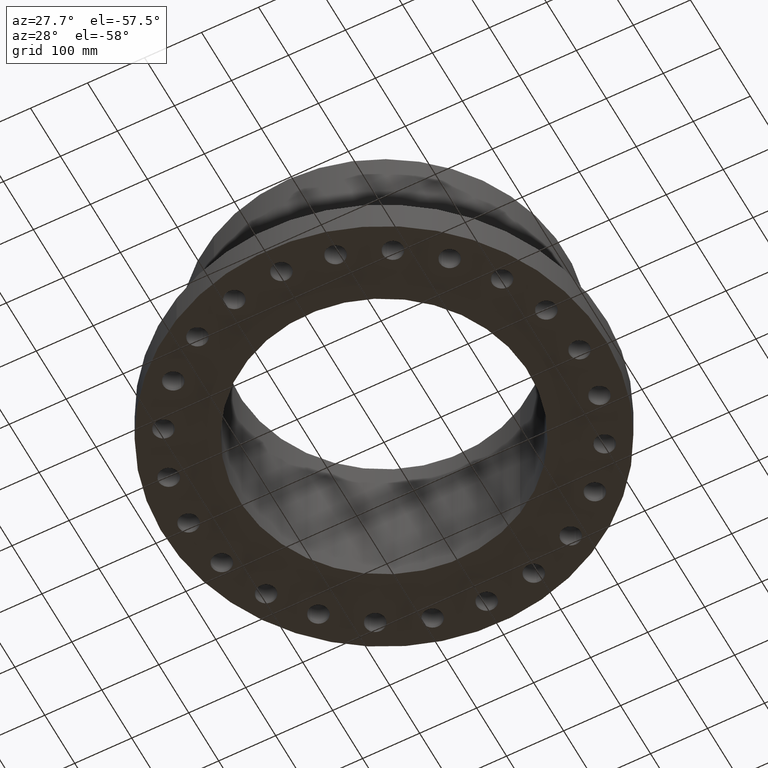
[diagram: clean part render]
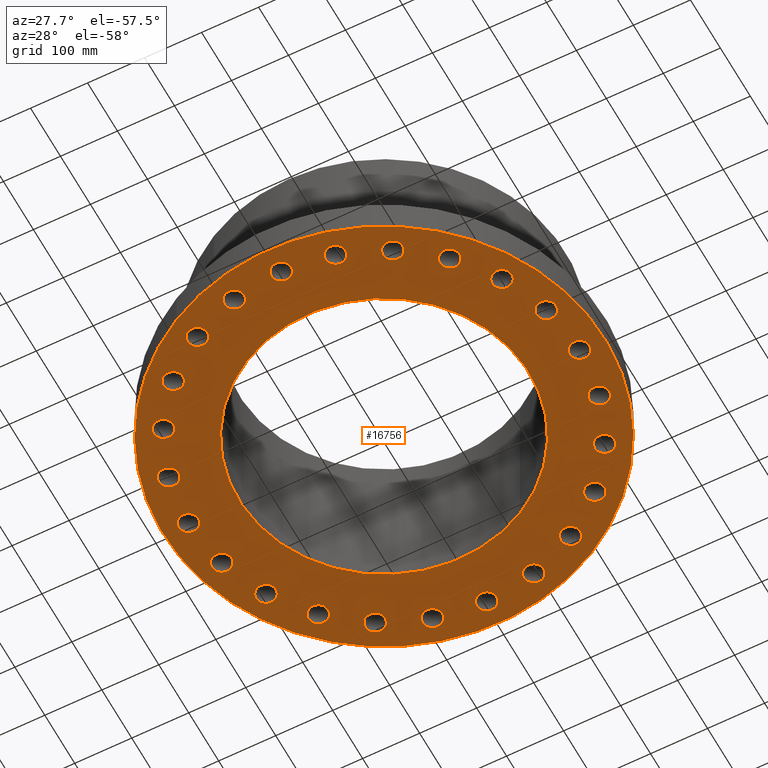
[diagram: same view with one face highlighted and labeled with its STEP entity id]
A machine part, auxiliary view. The second image highlights one B-rep face of the part: STEP entity #16756.
In plain terms, the highlighted planar face has unit normal (0, 0, 1).
Its self-contained STEP definition (entity closure, byte-faithful):
#65=AXIS2_PLACEMENT_3D('Circle Axis2P3D',#63,#64,$) ;
#82=AXIS2_PLACEMENT_3D('Circle Axis2P3D',#80,#81,$) ;
#577=AXIS2_PLACEMENT_3D('Circle Axis2P3D',#575,#576,$) ;
#603=AXIS2_PLACEMENT_3D('Circle Axis2P3D',#601,#602,$) ;
#677=AXIS2_PLACEMENT_3D('Circle Axis2P3D',#675,#676,$) ;
#689=AXIS2_PLACEMENT_3D('Circle Axis2P3D',#687,#688,$) ;
#720=AXIS2_PLACEMENT_3D('Circle Axis2P3D',#718,#719,$) ;
#732=AXIS2_PLACEMENT_3D('Circle Axis2P3D',#730,#731,$) ;
#763=AXIS2_PLACEMENT_3D('Circle Axis2P3D',#761,#762,$) ;
#775=AXIS2_PLACEMENT_3D('Circle Axis2P3D',#773,#774,$) ;
#806=AXIS2_PLACEMENT_3D('Circle Axis2P3D',#804,#805,$) ;
#818=AXIS2_PLACEMENT_3D('Circle Axis2P3D',#816,#817,$) ;
#849=AXIS2_PLACEMENT_3D('Circle Axis2P3D',#847,#848,$) ;
#861=AXIS2_PLACEMENT_3D('Circle Axis2P3D',#859,#860,$) ;
#892=AXIS2_PLACEMENT_3D('Circle Axis2P3D',#890,#891,$) ;
#904=AXIS2_PLACEMENT_3D('Circle Axis2P3D',#902,#903,$) ;
#935=AXIS2_PLACEMENT_3D('Circle Axis2P3D',#933,#934,$) ;
#947=AXIS2_PLACEMENT_3D('Circle Axis2P3D',#945,#946,$) ;
#978=AXIS2_PLACEMENT_3D('Circle Axis2P3D',#976,#977,$) ;
#990=AXIS2_PLACEMENT_3D('Circle Axis2P3D',#988,#989,$) ;
#1021=AXIS2_PLACEMENT_3D('Circle Axis2P3D',#1019,#1020,$) ;
#1033=AXIS2_PLACEMENT_3D('Circle Axis2P3D',#1031,#1032,$) ;
#1064=AXIS2_PLACEMENT_3D('Circle Axis2P3D',#1062,#1063,$) ;
#1076=AXIS2_PLACEMENT_3D('Circle Axis2P3D',#1074,#1075,$) ;
#1107=AXIS2_PLACEMENT_3D('Circle Axis2P3D',#1105,#1106,$) ;
#1119=AXIS2_PLACEMENT_3D('Circle Axis2P3D',#1117,#1118,$) ;
#1150=AXIS2_PLACEMENT_3D('Circle Axis2P3D',#1148,#1149,$) ;
#1162=AXIS2_PLACEMENT_3D('Circle Axis2P3D',#1160,#1161,$) ;
#1193=AXIS2_PLACEMENT_3D('Circle Axis2P3D',#1191,#1192,$) ;
#1205=AXIS2_PLACEMENT_3D('Circle Axis2P3D',#1203,#1204,$) ;
#1236=AXIS2_PLACEMENT_3D('Circle Axis2P3D',#1234,#1235,$) ;
#1248=AXIS2_PLACEMENT_3D('Circle Axis2P3D',#1246,#1247,$) ;
#1279=AXIS2_PLACEMENT_3D('Circle Axis2P3D',#1277,#1278,$) ;
#1291=AXIS2_PLACEMENT_3D('Circle Axis2P3D',#1289,#1290,$) ;
#1322=AXIS2_PLACEMENT_3D('Circle Axis2P3D',#1320,#1321,$) ;
#1334=AXIS2_PLACEMENT_3D('Circle Axis2P3D',#1332,#1333,$) ;
#1365=AXIS2_PLACEMENT_3D('Circle Axis2P3D',#1363,#1364,$) ;
#1377=AXIS2_PLACEMENT_3D('Circle Axis2P3D',#1375,#1376,$) ;
#1408=AXIS2_PLACEMENT_3D('Circle Axis2P3D',#1406,#1407,$) ;
#1420=AXIS2_PLACEMENT_3D('Circle Axis2P3D',#1418,#1419,$) ;
#1451=AXIS2_PLACEMENT_3D('Circle Axis2P3D',#1449,#1450,$) ;
#1463=AXIS2_PLACEMENT_3D('Circle Axis2P3D',#1461,#1462,$) ;
#1494=AXIS2_PLACEMENT_3D('Circle Axis2P3D',#1492,#1493,$) ;
#1506=AXIS2_PLACEMENT_3D('Circle Axis2P3D',#1504,#1505,$) ;
#1537=AXIS2_PLACEMENT_3D('Circle Axis2P3D',#1535,#1536,$) ;
#1549=AXIS2_PLACEMENT_3D('Circle Axis2P3D',#1547,#1548,$) ;
#1580=AXIS2_PLACEMENT_3D('Circle Axis2P3D',#1578,#1579,$) ;
#1592=AXIS2_PLACEMENT_3D('Circle Axis2P3D',#1590,#1591,$) ;
#1623=AXIS2_PLACEMENT_3D('Circle Axis2P3D',#1621,#1622,$) ;
#1635=AXIS2_PLACEMENT_3D('Circle Axis2P3D',#1633,#1634,$) ;
#16611=AXIS2_PLACEMENT_3D('Circle Axis2P3D',#16609,#16610,$) ;
#16637=AXIS2_PLACEMENT_3D('Circle Axis2P3D',#16635,#16636,$) ;
#16650=AXIS2_PLACEMENT_3D('Plane Axis2P3D',#16647,#16648,#16649) ;
#46=CARTESIAN_POINT('Vertex',(12.8944680323,-0.330803621638,2.2401153548E-016)) ;
#60=CARTESIAN_POINT('Vertex',(14.1055319678,0.330803621638,2.2401153548E-016)) ;
#63=CARTESIAN_POINT('Axis2P3D Location',(13.5000000001,0.,0.)) ;
#80=CARTESIAN_POINT('Axis2P3D Location',(13.5000000001,0.,0.)) ;
#575=CARTESIAN_POINT('Axis2P3D Location',(0.,0.,2.23792987641E-015)) ;
#579=CARTESIAN_POINT('Vertex',(-7.31123946374,-13.3831340689,2.23792987641E-015)) ;
#581=CARTESIAN_POINT('Vertex',(7.31123946374,13.3831340689,2.23792987641E-015)) ;
#601=CARTESIAN_POINT('Axis2P3D Location',(0.,0.,2.23792987641E-015)) ;
#665=CARTESIAN_POINT('Vertex',(12.3694814112,-3.65686566481,2.2401153548E-016)) ;
#672=CARTESIAN_POINT('Vertex',(13.7105158987,-3.33124855299,2.2401153548E-016)) ;
#675=CARTESIAN_POINT('Axis2P3D Location',(13.039998655,-3.4940571089,0.)) ;
#687=CARTESIAN_POINT('Axis2P3D Location',(13.039998655,-3.4940571089,0.)) ;
#708=CARTESIAN_POINT('Vertex',(11.0015350735,-6.73371835618,2.2401153548E-016)) ;
#715=CARTESIAN_POINT('Vertex',(12.3811508288,-6.76628164388,2.2401153548E-016)) ;
#718=CARTESIAN_POINT('Axis2P3D Location',(11.6913429511,-6.75000000003,0.)) ;
#730=CARTESIAN_POINT('Axis2P3D Location',(11.6913429511,-6.75000000003,0.)) ;
#751=CARTESIAN_POINT('Vertex',(8.88385230136,-9.35167926957,2.2401153548E-016)) ;
#758=CARTESIAN_POINT('Vertex',(10.2080307907,-9.74020382255,2.2401153548E-016)) ;
#761=CARTESIAN_POINT('Axis2P3D Location',(9.54594154606,-9.54594154606,0.)) ;
#773=CARTESIAN_POINT('Axis2P3D Location',(9.54594154606,-9.54594154606,0.)) ;
#794=CARTESIAN_POINT('Vertex',(6.16074967617,-11.3323386951,2.2401153548E-016)) ;
#801=CARTESIAN_POINT('Vertex',(7.33925032388,-12.0503472072,2.2401153548E-016)) ;
#804=CARTESIAN_POINT('Axis2P3D Location',(6.75000000003,-11.6913429511,0.)) ;
#816=CARTESIAN_POINT('Axis2P3D Location',(6.75000000003,-11.6913429511,0.)) ;
#837=CARTESIAN_POINT('Vertex',(3.01780214167,-12.5407179662,2.2401153548E-016)) ;
#844=CARTESIAN_POINT('Vertex',(3.97031207613,-13.5392793437,2.2401153548E-016)) ;
#847=CARTESIAN_POINT('Axis2P3D Location',(3.4940571089,-13.039998655,0.)) ;
#859=CARTESIAN_POINT('Axis2P3D Location',(3.4940571089,-13.039998655,0.)) ;
#880=CARTESIAN_POINT('Vertex',(-0.330803621638,-12.8944680323,2.2401153548E-016)) ;
#887=CARTESIAN_POINT('Vertex',(0.330803621638,-14.1055319678,2.2401153548E-016)) ;
#890=CARTESIAN_POINT('Axis2P3D Location',(-1.41129328698E-015,-13.5000000001,0.)) ;
#902=CARTESIAN_POINT('Axis2P3D Location',(-1.41129328698E-015,-13.5000000001,0.)) ;
#923=CARTESIAN_POINT('Vertex',(-3.65686566481,-12.3694814112,2.22918796283E-016)) ;
#930=CARTESIAN_POINT('Vertex',(-3.33124855299,-13.7105158987,2.22918796283E-016)) ;
#933=CARTESIAN_POINT('Axis2P3D Location',(-3.4940571089,-13.039998655,-2.18547839493E-018)) ;
#945=CARTESIAN_POINT('Axis2P3D Location',(-3.4940571089,-13.039998655,-2.18547839493E-018)) ;
#966=CARTESIAN_POINT('Vertex',(-6.73371835618,-11.0015350735,2.22372426684E-016)) ;
#973=CARTESIAN_POINT('Vertex',(-6.76628164388,-12.3811508288,2.22372426684E-016)) ;
#976=CARTESIAN_POINT('Axis2P3D Location',(-6.75000000003,-11.6913429511,-3.2782175924E-018)) ;
#988=CARTESIAN_POINT('Axis2P3D Location',(-6.75000000003,-11.6913429511,-3.2782175924E-018)) ;
#1009=CARTESIAN_POINT('Vertex',(-9.35167926957,-8.88385230136,2.2401153548E-016)) ;
#1016=CARTESIAN_POINT('Vertex',(-9.74020382255,-10.2080307907,2.2401153548E-016)) ;
#1019=CARTESIAN_POINT('Axis2P3D Location',(-9.54594154606,-9.54594154606,0.)) ;
#1031=CARTESIAN_POINT('Axis2P3D Location',(-9.54594154606,-9.54594154606,0.)) ;
#1052=CARTESIAN_POINT('Vertex',(-11.3323386951,-6.16074967617,2.2401153548E-016)) ;
#1059=CARTESIAN_POINT('Vertex',(-12.0503472072,-7.33925032388,2.2401153548E-016)) ;
#1062=CARTESIAN_POINT('Axis2P3D Location',(-11.6913429511,-6.75000000003,0.)) ;
#1074=CARTESIAN_POINT('Axis2P3D Location',(-11.6913429511,-6.75000000003,0.)) ;
#1095=CARTESIAN_POINT('Vertex',(-12.5407179662,-3.01780214167,2.2401153548E-016)) ;
#1102=CARTESIAN_POINT('Vertex',(-13.5392793437,-3.97031207613,2.2401153548E-016)) ;
#1105=CARTESIAN_POINT('Axis2P3D Location',(-13.039998655,-3.4940571089,0.)) ;
#1117=CARTESIAN_POINT('Axis2P3D Location',(-13.039998655,-3.4940571089,0.)) ;
#1138=CARTESIAN_POINT('Vertex',(-12.8944680323,0.330803621638,2.2401153548E-016)) ;
#1145=CARTESIAN_POINT('Vertex',(-14.1055319678,-0.330803621638,2.2401153548E-016)) ;
#1148=CARTESIAN_POINT('Axis2P3D Location',(-13.5000000001,-1.65327317886E-015,0.)) ;
#1160=CARTESIAN_POINT('Axis2P3D Location',(-13.5000000001,-1.65327317886E-015,0.)) ;
#1181=CARTESIAN_POINT('Vertex',(-12.3694814112,3.65686566481,2.2401153548E-016)) ;
#1188=CARTESIAN_POINT('Vertex',(-13.7105158987,3.33124855299,2.2401153548E-016)) ;
#1191=CARTESIAN_POINT('Axis2P3D Location',(-13.039998655,3.4940571089,0.)) ;
#1203=CARTESIAN_POINT('Axis2P3D Location',(-13.039998655,3.4940571089,0.)) ;
#1224=CARTESIAN_POINT('Vertex',(-11.0015350735,6.73371835618,2.2401153548E-016)) ;
#1231=CARTESIAN_POINT('Vertex',(-12.3811508288,6.76628164388,2.2401153548E-016)) ;
#1234=CARTESIAN_POINT('Axis2P3D Location',(-11.6913429511,6.75000000003,0.)) ;
#1246=CARTESIAN_POINT('Axis2P3D Location',(-11.6913429511,6.75000000003,0.)) ;
#1267=CARTESIAN_POINT('Vertex',(-8.88385230136,9.35167926957,2.2401153548E-016)) ;
#1274=CARTESIAN_POINT('Vertex',(-10.2080307907,9.74020382255,2.2401153548E-016)) ;
#1277=CARTESIAN_POINT('Axis2P3D Location',(-9.54594154606,9.54594154606,0.)) ;
#1289=CARTESIAN_POINT('Axis2P3D Location',(-9.54594154606,9.54594154606,0.)) ;
#1310=CARTESIAN_POINT('Vertex',(-6.16074967617,11.3323386951,2.2401153548E-016)) ;
#1317=CARTESIAN_POINT('Vertex',(-7.33925032388,12.0503472072,2.2401153548E-016)) ;
#1320=CARTESIAN_POINT('Axis2P3D Location',(-6.75000000003,11.6913429511,0.)) ;
#1332=CARTESIAN_POINT('Axis2P3D Location',(-6.75000000003,11.6913429511,0.)) ;
#1353=CARTESIAN_POINT('Vertex',(-3.01780214167,12.5407179662,2.2401153548E-016)) ;
#1360=CARTESIAN_POINT('Vertex',(-3.97031207613,13.5392793437,2.2401153548E-016)) ;
#1363=CARTESIAN_POINT('Axis2P3D Location',(-3.4940571089,13.039998655,0.)) ;
#1375=CARTESIAN_POINT('Axis2P3D Location',(-3.4940571089,13.039998655,0.)) ;
#1396=CARTESIAN_POINT('Vertex',(0.330803621638,12.8944680323,2.2401153548E-016)) ;
#1403=CARTESIAN_POINT('Vertex',(-0.330803621638,14.1055319678,2.2401153548E-016)) ;
#1406=CARTESIAN_POINT('Axis2P3D Location',(-2.47990976828E-015,13.5000000001,0.)) ;
#1418=CARTESIAN_POINT('Axis2P3D Location',(-2.47990976828E-015,13.5000000001,0.)) ;
#1439=CARTESIAN_POINT('Vertex',(3.65686566481,12.3694814112,2.2401153548E-016)) ;
#1446=CARTESIAN_POINT('Vertex',(3.33124855299,13.7105158987,2.2401153548E-016)) ;
#1449=CARTESIAN_POINT('Axis2P3D Location',(3.4940571089,13.039998655,0.)) ;
#1461=CARTESIAN_POINT('Axis2P3D Location',(3.4940571089,13.039998655,0.)) ;
#1482=CARTESIAN_POINT('Vertex',(6.73371835618,11.0015350735,2.2401153548E-016)) ;
#1489=CARTESIAN_POINT('Vertex',(6.76628164388,12.3811508288,2.2401153548E-016)) ;
#1492=CARTESIAN_POINT('Axis2P3D Location',(6.75000000003,11.6913429511,0.)) ;
#1504=CARTESIAN_POINT('Axis2P3D Location',(6.75000000003,11.6913429511,0.)) ;
#1525=CARTESIAN_POINT('Vertex',(9.35167926957,8.88385230136,2.2401153548E-016)) ;
#1532=CARTESIAN_POINT('Vertex',(9.74020382255,10.2080307907,2.2401153548E-016)) ;
#1535=CARTESIAN_POINT('Axis2P3D Location',(9.54594154606,9.54594154606,0.)) ;
#1547=CARTESIAN_POINT('Axis2P3D Location',(9.54594154606,9.54594154606,0.)) ;
#1568=CARTESIAN_POINT('Vertex',(11.3323386951,6.16074967617,2.2401153548E-016)) ;
#1575=CARTESIAN_POINT('Vertex',(12.0503472072,7.33925032388,2.2401153548E-016)) ;
#1578=CARTESIAN_POINT('Axis2P3D Location',(11.6913429511,6.75000000003,0.)) ;
#1590=CARTESIAN_POINT('Axis2P3D Location',(11.6913429511,6.75000000003,0.)) ;
#1611=CARTESIAN_POINT('Vertex',(12.5407179662,3.01780214167,2.2401153548E-016)) ;
#1618=CARTESIAN_POINT('Vertex',(13.5392793437,3.97031207613,2.2401153548E-016)) ;
#1621=CARTESIAN_POINT('Axis2P3D Location',(13.039998655,3.4940571089,0.)) ;
#1633=CARTESIAN_POINT('Axis2P3D Location',(13.039998655,3.4940571089,0.)) ;
#16609=CARTESIAN_POINT('Axis2P3D Location',(0.,0.,0.)) ;
#16613=CARTESIAN_POINT('Vertex',(-4.79425538606,-8.77582561894,0.)) ;
#16615=CARTESIAN_POINT('Vertex',(4.79425538606,8.77582561894,0.)) ;
#16635=CARTESIAN_POINT('Axis2P3D Location',(0.,0.,0.)) ;
#16647=CARTESIAN_POINT('Axis2P3D Location',(0.,0.,0.)) ;
#64=DIRECTION('Axis2P3D Direction',(0.,-0.,0.0393700787402)) ;
#81=DIRECTION('Axis2P3D Direction',(0.,-0.,0.0393700787402)) ;
#576=DIRECTION('Axis2P3D Direction',(0.,0.,-0.0393700787402)) ;
#602=DIRECTION('Axis2P3D Direction',(0.,0.,-0.0393700787402)) ;
#676=DIRECTION('Axis2P3D Direction',(-0.,0.,0.0393700787402)) ;
#688=DIRECTION('Axis2P3D Direction',(-0.,0.,0.0393700787402)) ;
#719=DIRECTION('Axis2P3D Direction',(-0.,0.,0.0393700787402)) ;
#731=DIRECTION('Axis2P3D Direction',(-0.,0.,0.0393700787402)) ;
#762=DIRECTION('Axis2P3D Direction',(-0.,0.,0.0393700787402)) ;
#774=DIRECTION('Axis2P3D Direction',(-0.,0.,0.0393700787402)) ;
#805=DIRECTION('Axis2P3D Direction',(-0.,0.,0.0393700787402)) ;
#817=DIRECTION('Axis2P3D Direction',(-0.,0.,0.0393700787402)) ;
#848=DIRECTION('Axis2P3D Direction',(-0.,0.,0.0393700787402)) ;
#860=DIRECTION('Axis2P3D Direction',(-0.,0.,0.0393700787402)) ;
#891=DIRECTION('Axis2P3D Direction',(-0.,0.,0.0393700787402)) ;
#903=DIRECTION('Axis2P3D Direction',(-0.,0.,0.0393700787402)) ;
#934=DIRECTION('Axis2P3D Direction',(0.,0.,0.0393700787402)) ;
#946=DIRECTION('Axis2P3D Direction',(0.,0.,0.0393700787402)) ;
#977=DIRECTION('Axis2P3D Direction',(0.,0.,0.0393700787402)) ;
#989=DIRECTION('Axis2P3D Direction',(0.,0.,0.0393700787402)) ;
#1020=DIRECTION('Axis2P3D Direction',(0.,0.,0.0393700787402)) ;
#1032=DIRECTION('Axis2P3D Direction',(0.,0.,0.0393700787402)) ;
#1063=DIRECTION('Axis2P3D Direction',(0.,0.,0.0393700787402)) ;
#1075=DIRECTION('Axis2P3D Direction',(0.,0.,0.0393700787402)) ;
#1106=DIRECTION('Axis2P3D Direction',(0.,0.,0.0393700787402)) ;
#1118=DIRECTION('Axis2P3D Direction',(0.,0.,0.0393700787402)) ;
#1149=DIRECTION('Axis2P3D Direction',(0.,0.,0.0393700787402)) ;
#1161=DIRECTION('Axis2P3D Direction',(0.,0.,0.0393700787402)) ;
#1192=DIRECTION('Axis2P3D Direction',(0.,0.,0.0393700787402)) ;
#1204=DIRECTION('Axis2P3D Direction',(0.,0.,0.0393700787402)) ;
#1235=DIRECTION('Axis2P3D Direction',(0.,0.,0.0393700787402)) ;
#1247=DIRECTION('Axis2P3D Direction',(0.,0.,0.0393700787402)) ;
#1278=DIRECTION('Axis2P3D Direction',(0.,0.,0.0393700787402)) ;
#1290=DIRECTION('Axis2P3D Direction',(0.,0.,0.0393700787402)) ;
#1321=DIRECTION('Axis2P3D Direction',(0.,0.,0.0393700787402)) ;
#1333=DIRECTION('Axis2P3D Direction',(0.,0.,0.0393700787402)) ;
#1364=DIRECTION('Axis2P3D Direction',(0.,0.,0.0393700787402)) ;
#1376=DIRECTION('Axis2P3D Direction',(0.,0.,0.0393700787402)) ;
#1407=DIRECTION('Axis2P3D Direction',(0.,0.,0.0393700787402)) ;
#1419=DIRECTION('Axis2P3D Direction',(0.,0.,0.0393700787402)) ;
#1450=DIRECTION('Axis2P3D Direction',(0.,-0.,0.0393700787402)) ;
#1462=DIRECTION('Axis2P3D Direction',(0.,-0.,0.0393700787402)) ;
#1493=DIRECTION('Axis2P3D Direction',(0.,-0.,0.0393700787402)) ;
#1505=DIRECTION('Axis2P3D Direction',(0.,-0.,0.0393700787402)) ;
#1536=DIRECTION('Axis2P3D Direction',(0.,-0.,0.0393700787402)) ;
#1548=DIRECTION('Axis2P3D Direction',(0.,-0.,0.0393700787402)) ;
#1579=DIRECTION('Axis2P3D Direction',(0.,-0.,0.0393700787402)) ;
#1591=DIRECTION('Axis2P3D Direction',(0.,-0.,0.0393700787402)) ;
#1622=DIRECTION('Axis2P3D Direction',(0.,-0.,0.0393700787402)) ;
#1634=DIRECTION('Axis2P3D Direction',(0.,-0.,0.0393700787402)) ;
#16610=DIRECTION('Axis2P3D Direction',(0.,0.,-0.0393700787402)) ;
#16636=DIRECTION('Axis2P3D Direction',(0.,0.,-0.0393700787402)) ;
#16648=DIRECTION('Axis2P3D Direction',(0.,0.,0.0393700787402)) ;
#16649=DIRECTION('Axis2P3D XDirection',(0.0393700787402,0.,0.)) ;
#16653=ORIENTED_EDGE('',*,*,#605,.T.) ;
#16654=ORIENTED_EDGE('',*,*,#583,.T.) ;
#16657=ORIENTED_EDGE('',*,*,#1625,.F.) ;
#16658=ORIENTED_EDGE('',*,*,#1637,.F.) ;
#16661=ORIENTED_EDGE('',*,*,#1582,.F.) ;
#16662=ORIENTED_EDGE('',*,*,#1594,.F.) ;
#16665=ORIENTED_EDGE('',*,*,#1539,.F.) ;
#16666=ORIENTED_EDGE('',*,*,#1551,.F.) ;
#16669=ORIENTED_EDGE('',*,*,#1496,.F.) ;
#16670=ORIENTED_EDGE('',*,*,#1508,.F.) ;
#16673=ORIENTED_EDGE('',*,*,#1453,.F.) ;
#16674=ORIENTED_EDGE('',*,*,#1465,.F.) ;
#16677=ORIENTED_EDGE('',*,*,#1410,.F.) ;
#16678=ORIENTED_EDGE('',*,*,#1422,.F.) ;
#16681=ORIENTED_EDGE('',*,*,#1367,.F.) ;
#16682=ORIENTED_EDGE('',*,*,#1379,.F.) ;
#16685=ORIENTED_EDGE('',*,*,#1324,.F.) ;
#16686=ORIENTED_EDGE('',*,*,#1336,.F.) ;
#16689=ORIENTED_EDGE('',*,*,#1281,.F.) ;
#16690=ORIENTED_EDGE('',*,*,#1293,.F.) ;
#16693=ORIENTED_EDGE('',*,*,#1238,.F.) ;
#16694=ORIENTED_EDGE('',*,*,#1250,.F.) ;
#16697=ORIENTED_EDGE('',*,*,#1195,.F.) ;
#16698=ORIENTED_EDGE('',*,*,#1207,.F.) ;
#16701=ORIENTED_EDGE('',*,*,#1152,.F.) ;
#16702=ORIENTED_EDGE('',*,*,#1164,.F.) ;
#16705=ORIENTED_EDGE('',*,*,#1109,.F.) ;
#16706=ORIENTED_EDGE('',*,*,#1121,.F.) ;
#16709=ORIENTED_EDGE('',*,*,#1066,.F.) ;
#16710=ORIENTED_EDGE('',*,*,#1078,.F.) ;
#16713=ORIENTED_EDGE('',*,*,#1023,.F.) ;
#16714=ORIENTED_EDGE('',*,*,#1035,.F.) ;
#16717=ORIENTED_EDGE('',*,*,#980,.F.) ;
#16718=ORIENTED_EDGE('',*,*,#992,.F.) ;
#16721=ORIENTED_EDGE('',*,*,#937,.F.) ;
#16722=ORIENTED_EDGE('',*,*,#949,.F.) ;
#16725=ORIENTED_EDGE('',*,*,#894,.F.) ;
#16726=ORIENTED_EDGE('',*,*,#906,.F.) ;
#16729=ORIENTED_EDGE('',*,*,#851,.F.) ;
#16730=ORIENTED_EDGE('',*,*,#863,.F.) ;
#16733=ORIENTED_EDGE('',*,*,#808,.F.) ;
#16734=ORIENTED_EDGE('',*,*,#820,.F.) ;
#16737=ORIENTED_EDGE('',*,*,#765,.F.) ;
#16738=ORIENTED_EDGE('',*,*,#777,.F.) ;
#16741=ORIENTED_EDGE('',*,*,#722,.F.) ;
#16742=ORIENTED_EDGE('',*,*,#734,.F.) ;
#16745=ORIENTED_EDGE('',*,*,#679,.F.) ;
#16746=ORIENTED_EDGE('',*,*,#691,.F.) ;
#16749=ORIENTED_EDGE('',*,*,#84,.F.) ;
#16750=ORIENTED_EDGE('',*,*,#67,.F.) ;
#16753=ORIENTED_EDGE('',*,*,#16639,.T.) ;
#16754=ORIENTED_EDGE('',*,*,#16617,.T.) ;
#16659=FACE_BOUND('',#16656,.T.) ;
#16663=FACE_BOUND('',#16660,.T.) ;
#16667=FACE_BOUND('',#16664,.T.) ;
#16671=FACE_BOUND('',#16668,.T.) ;
#16675=FACE_BOUND('',#16672,.T.) ;
#16679=FACE_BOUND('',#16676,.T.) ;
#16683=FACE_BOUND('',#16680,.T.) ;
#16687=FACE_BOUND('',#16684,.T.) ;
#16691=FACE_BOUND('',#16688,.T.) ;
#16695=FACE_BOUND('',#16692,.T.) ;
#16699=FACE_BOUND('',#16696,.T.) ;
#16703=FACE_BOUND('',#16700,.T.) ;
#16707=FACE_BOUND('',#16704,.T.) ;
#16711=FACE_BOUND('',#16708,.T.) ;
#16715=FACE_BOUND('',#16712,.T.) ;
#16719=FACE_BOUND('',#16716,.T.) ;
#16723=FACE_BOUND('',#16720,.T.) ;
#16727=FACE_BOUND('',#16724,.T.) ;
#16731=FACE_BOUND('',#16728,.T.) ;
#16735=FACE_BOUND('',#16732,.T.) ;
#16739=FACE_BOUND('',#16736,.T.) ;
#16743=FACE_BOUND('',#16740,.T.) ;
#16747=FACE_BOUND('',#16744,.T.) ;
#16751=FACE_BOUND('',#16748,.T.) ;
#16755=FACE_BOUND('',#16752,.T.) ;
#16756=ADVANCED_FACE('PartBody',(#16655,#16659,#16663,#16667,#16671,#16675,#16679,#16683,#16687,#16691,#16695,#16699,#16703,#16707,#16711,#16715,#16719,#16723,#16727,#16731,#16735,#16739,#16743,#16747,#16751,#16755),#16651,.F.) ;
#66=CIRCLE('generated circle',#65,0.690000000003) ;
#83=CIRCLE('generated circle',#82,0.690000000003) ;
#578=CIRCLE('generated circle',#577,15.2500000001) ;
#604=CIRCLE('generated circle',#603,15.2500000001) ;
#678=CIRCLE('generated circle',#677,0.690000000003) ;
#690=CIRCLE('generated circle',#689,0.690000000003) ;
#721=CIRCLE('generated circle',#720,0.690000000003) ;
#733=CIRCLE('generated circle',#732,0.690000000003) ;
#764=CIRCLE('generated circle',#763,0.690000000003) ;
#776=CIRCLE('generated circle',#775,0.690000000003) ;
#807=CIRCLE('generated circle',#806,0.690000000003) ;
#819=CIRCLE('generated circle',#818,0.690000000003) ;
#850=CIRCLE('generated circle',#849,0.690000000003) ;
#862=CIRCLE('generated circle',#861,0.690000000003) ;
#893=CIRCLE('generated circle',#892,0.690000000003) ;
#905=CIRCLE('generated circle',#904,0.690000000003) ;
#936=CIRCLE('generated circle',#935,0.690000000003) ;
#948=CIRCLE('generated circle',#947,0.690000000003) ;
#979=CIRCLE('generated circle',#978,0.690000000003) ;
#991=CIRCLE('generated circle',#990,0.690000000003) ;
#1022=CIRCLE('generated circle',#1021,0.690000000003) ;
#1034=CIRCLE('generated circle',#1033,0.690000000003) ;
#1065=CIRCLE('generated circle',#1064,0.690000000003) ;
#1077=CIRCLE('generated circle',#1076,0.690000000003) ;
#1108=CIRCLE('generated circle',#1107,0.690000000003) ;
#1120=CIRCLE('generated circle',#1119,0.690000000003) ;
#1151=CIRCLE('generated circle',#1150,0.690000000003) ;
#1163=CIRCLE('generated circle',#1162,0.690000000003) ;
#1194=CIRCLE('generated circle',#1193,0.690000000003) ;
#1206=CIRCLE('generated circle',#1205,0.690000000003) ;
#1237=CIRCLE('generated circle',#1236,0.690000000003) ;
#1249=CIRCLE('generated circle',#1248,0.690000000003) ;
#1280=CIRCLE('generated circle',#1279,0.690000000003) ;
#1292=CIRCLE('generated circle',#1291,0.690000000003) ;
#1323=CIRCLE('generated circle',#1322,0.690000000003) ;
#1335=CIRCLE('generated circle',#1334,0.690000000003) ;
#1366=CIRCLE('generated circle',#1365,0.690000000003) ;
#1378=CIRCLE('generated circle',#1377,0.690000000003) ;
#1409=CIRCLE('generated circle',#1408,0.690000000003) ;
#1421=CIRCLE('generated circle',#1420,0.690000000003) ;
#1452=CIRCLE('generated circle',#1451,0.690000000003) ;
#1464=CIRCLE('generated circle',#1463,0.690000000003) ;
#1495=CIRCLE('generated circle',#1494,0.690000000003) ;
#1507=CIRCLE('generated circle',#1506,0.690000000003) ;
#1538=CIRCLE('generated circle',#1537,0.690000000003) ;
#1550=CIRCLE('generated circle',#1549,0.690000000003) ;
#1581=CIRCLE('generated circle',#1580,0.690000000003) ;
#1593=CIRCLE('generated circle',#1592,0.690000000003) ;
#1624=CIRCLE('generated circle',#1623,0.690000000003) ;
#1636=CIRCLE('generated circle',#1635,0.690000000003) ;
#16612=CIRCLE('generated circle',#16611,10.) ;
#16638=CIRCLE('generated circle',#16637,10.) ;
#67=EDGE_CURVE('',#61,#47,#66,.F.) ;
#84=EDGE_CURVE('',#47,#61,#83,.F.) ;
#583=EDGE_CURVE('',#580,#582,#578,.T.) ;
#605=EDGE_CURVE('',#582,#580,#604,.T.) ;
#679=EDGE_CURVE('',#673,#666,#678,.F.) ;
#691=EDGE_CURVE('',#666,#673,#690,.F.) ;
#722=EDGE_CURVE('',#716,#709,#721,.F.) ;
#734=EDGE_CURVE('',#709,#716,#733,.F.) ;
#765=EDGE_CURVE('',#759,#752,#764,.F.) ;
#777=EDGE_CURVE('',#752,#759,#776,.F.) ;
#808=EDGE_CURVE('',#802,#795,#807,.F.) ;
#820=EDGE_CURVE('',#795,#802,#819,.F.) ;
#851=EDGE_CURVE('',#845,#838,#850,.F.) ;
#863=EDGE_CURVE('',#838,#845,#862,.F.) ;
#894=EDGE_CURVE('',#888,#881,#893,.F.) ;
#906=EDGE_CURVE('',#881,#888,#905,.F.) ;
#937=EDGE_CURVE('',#931,#924,#936,.F.) ;
#949=EDGE_CURVE('',#924,#931,#948,.F.) ;
#980=EDGE_CURVE('',#974,#967,#979,.F.) ;
#992=EDGE_CURVE('',#967,#974,#991,.F.) ;
#1023=EDGE_CURVE('',#1017,#1010,#1022,.F.) ;
#1035=EDGE_CURVE('',#1010,#1017,#1034,.F.) ;
#1066=EDGE_CURVE('',#1060,#1053,#1065,.F.) ;
#1078=EDGE_CURVE('',#1053,#1060,#1077,.F.) ;
#1109=EDGE_CURVE('',#1103,#1096,#1108,.F.) ;
#1121=EDGE_CURVE('',#1096,#1103,#1120,.F.) ;
#1152=EDGE_CURVE('',#1146,#1139,#1151,.F.) ;
#1164=EDGE_CURVE('',#1139,#1146,#1163,.F.) ;
#1195=EDGE_CURVE('',#1189,#1182,#1194,.F.) ;
#1207=EDGE_CURVE('',#1182,#1189,#1206,.F.) ;
#1238=EDGE_CURVE('',#1232,#1225,#1237,.F.) ;
#1250=EDGE_CURVE('',#1225,#1232,#1249,.F.) ;
#1281=EDGE_CURVE('',#1275,#1268,#1280,.F.) ;
#1293=EDGE_CURVE('',#1268,#1275,#1292,.F.) ;
#1324=EDGE_CURVE('',#1318,#1311,#1323,.F.) ;
#1336=EDGE_CURVE('',#1311,#1318,#1335,.F.) ;
#1367=EDGE_CURVE('',#1361,#1354,#1366,.F.) ;
#1379=EDGE_CURVE('',#1354,#1361,#1378,.F.) ;
#1410=EDGE_CURVE('',#1404,#1397,#1409,.F.) ;
#1422=EDGE_CURVE('',#1397,#1404,#1421,.F.) ;
#1453=EDGE_CURVE('',#1447,#1440,#1452,.F.) ;
#1465=EDGE_CURVE('',#1440,#1447,#1464,.F.) ;
#1496=EDGE_CURVE('',#1490,#1483,#1495,.F.) ;
#1508=EDGE_CURVE('',#1483,#1490,#1507,.F.) ;
#1539=EDGE_CURVE('',#1533,#1526,#1538,.F.) ;
#1551=EDGE_CURVE('',#1526,#1533,#1550,.F.) ;
#1582=EDGE_CURVE('',#1576,#1569,#1581,.F.) ;
#1594=EDGE_CURVE('',#1569,#1576,#1593,.F.) ;
#1625=EDGE_CURVE('',#1619,#1612,#1624,.F.) ;
#1637=EDGE_CURVE('',#1612,#1619,#1636,.F.) ;
#16617=EDGE_CURVE('',#16614,#16616,#16612,.F.) ;
#16639=EDGE_CURVE('',#16616,#16614,#16638,.F.) ;
#16652=EDGE_LOOP('',(#16653,#16654)) ;
#16656=EDGE_LOOP('',(#16657,#16658)) ;
#16660=EDGE_LOOP('',(#16661,#16662)) ;
#16664=EDGE_LOOP('',(#16665,#16666)) ;
#16668=EDGE_LOOP('',(#16669,#16670)) ;
#16672=EDGE_LOOP('',(#16673,#16674)) ;
#16676=EDGE_LOOP('',(#16677,#16678)) ;
#16680=EDGE_LOOP('',(#16681,#16682)) ;
#16684=EDGE_LOOP('',(#16685,#16686)) ;
#16688=EDGE_LOOP('',(#16689,#16690)) ;
#16692=EDGE_LOOP('',(#16693,#16694)) ;
#16696=EDGE_LOOP('',(#16697,#16698)) ;
#16700=EDGE_LOOP('',(#16701,#16702)) ;
#16704=EDGE_LOOP('',(#16705,#16706)) ;
#16708=EDGE_LOOP('',(#16709,#16710)) ;
#16712=EDGE_LOOP('',(#16713,#16714)) ;
#16716=EDGE_LOOP('',(#16717,#16718)) ;
#16720=EDGE_LOOP('',(#16721,#16722)) ;
#16724=EDGE_LOOP('',(#16725,#16726)) ;
#16728=EDGE_LOOP('',(#16729,#16730)) ;
#16732=EDGE_LOOP('',(#16733,#16734)) ;
#16736=EDGE_LOOP('',(#16737,#16738)) ;
#16740=EDGE_LOOP('',(#16741,#16742)) ;
#16744=EDGE_LOOP('',(#16745,#16746)) ;
#16748=EDGE_LOOP('',(#16749,#16750)) ;
#16752=EDGE_LOOP('',(#16753,#16754)) ;
#16655=FACE_OUTER_BOUND('',#16652,.T.) ;
#16651=PLANE('',#16650) ;
#47=VERTEX_POINT('',#46) ;
#61=VERTEX_POINT('',#60) ;
#580=VERTEX_POINT('',#579) ;
#582=VERTEX_POINT('',#581) ;
#666=VERTEX_POINT('',#665) ;
#673=VERTEX_POINT('',#672) ;
#709=VERTEX_POINT('',#708) ;
#716=VERTEX_POINT('',#715) ;
#752=VERTEX_POINT('',#751) ;
#759=VERTEX_POINT('',#758) ;
#795=VERTEX_POINT('',#794) ;
#802=VERTEX_POINT('',#801) ;
#838=VERTEX_POINT('',#837) ;
#845=VERTEX_POINT('',#844) ;
#881=VERTEX_POINT('',#880) ;
#888=VERTEX_POINT('',#887) ;
#924=VERTEX_POINT('',#923) ;
#931=VERTEX_POINT('',#930) ;
#967=VERTEX_POINT('',#966) ;
#974=VERTEX_POINT('',#973) ;
#1010=VERTEX_POINT('',#1009) ;
#1017=VERTEX_POINT('',#1016) ;
#1053=VERTEX_POINT('',#1052) ;
#1060=VERTEX_POINT('',#1059) ;
#1096=VERTEX_POINT('',#1095) ;
#1103=VERTEX_POINT('',#1102) ;
#1139=VERTEX_POINT('',#1138) ;
#1146=VERTEX_POINT('',#1145) ;
#1182=VERTEX_POINT('',#1181) ;
#1189=VERTEX_POINT('',#1188) ;
#1225=VERTEX_POINT('',#1224) ;
#1232=VERTEX_POINT('',#1231) ;
#1268=VERTEX_POINT('',#1267) ;
#1275=VERTEX_POINT('',#1274) ;
#1311=VERTEX_POINT('',#1310) ;
#1318=VERTEX_POINT('',#1317) ;
#1354=VERTEX_POINT('',#1353) ;
#1361=VERTEX_POINT('',#1360) ;
#1397=VERTEX_POINT('',#1396) ;
#1404=VERTEX_POINT('',#1403) ;
#1440=VERTEX_POINT('',#1439) ;
#1447=VERTEX_POINT('',#1446) ;
#1483=VERTEX_POINT('',#1482) ;
#1490=VERTEX_POINT('',#1489) ;
#1526=VERTEX_POINT('',#1525) ;
#1533=VERTEX_POINT('',#1532) ;
#1569=VERTEX_POINT('',#1568) ;
#1576=VERTEX_POINT('',#1575) ;
#1612=VERTEX_POINT('',#1611) ;
#1619=VERTEX_POINT('',#1618) ;
#16614=VERTEX_POINT('',#16613) ;
#16616=VERTEX_POINT('',#16615) ;